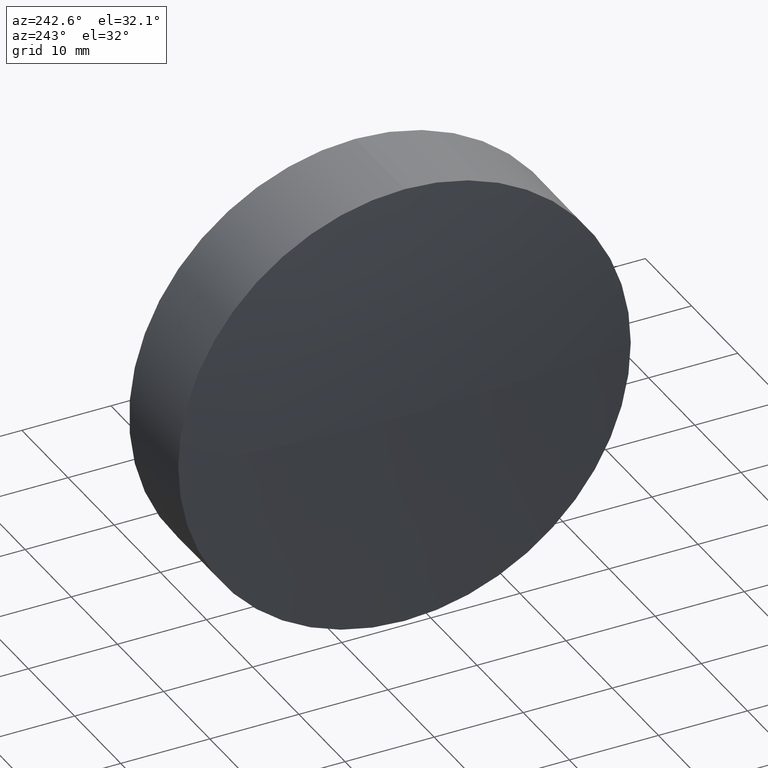
[diagram: clean part render]
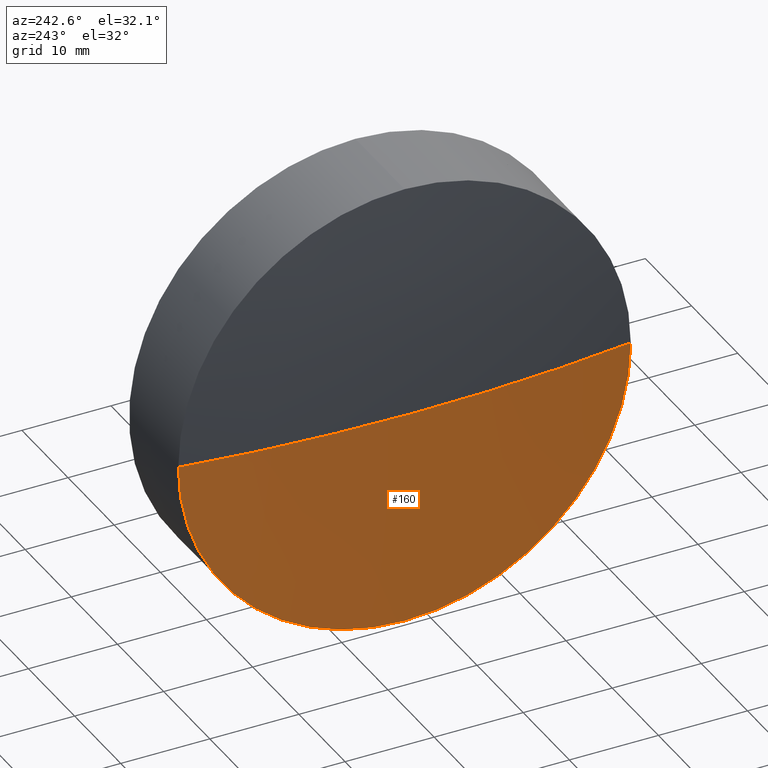
[diagram: same view with one face highlighted and labeled with its STEP entity id]
A machine part, auxiliary view. The second image highlights one B-rep face of the part: STEP entity #160.
In plain terms, the highlighted spherical surface has radius 184.25 mm.
Its self-contained STEP definition (entity closure, byte-faithful):
#2 = EDGE_CURVE ( 'NONE', #385, #277, #74, .T. ) ;
#17 = DIRECTION ( 'NONE',  ( 0.000000000000000000, 0.000000000000000000, 1.000000000000000000 ) ) ;
#39 = EDGE_CURVE ( 'NONE', #385, #207, #42, .T. ) ;
#42 = CIRCLE ( 'NONE', #65, 25.39999999999999858 ) ;
#52 = ORIENTED_EDGE ( 'NONE', *, *, #130, .T. ) ;
#65 = AXIS2_PLACEMENT_3D ( 'NONE', #280, #102, #279 ) ;
#70 = DIRECTION ( 'NONE',  ( 0.000000000000000000, 1.000000000000000000, 1.224646799147352961E-16 ) ) ;
#74 = CIRCLE ( 'NONE', #321, 184.2500000000000000 ) ;
#89 = CARTESIAN_POINT ( 'NONE',  ( 151.6477093542552836, 13.39555463349441311, 0.000000000000000000 ) ) ;
#92 = EDGE_LOOP ( 'NONE', ( #187, #343, #52, #129 ) ) ;
#102 = DIRECTION ( 'NONE',  ( -1.000000000000000000, -0.000000000000000000, -0.000000000000000000 ) ) ;
#117 = AXIS2_PLACEMENT_3D ( 'NONE', #285, #228, #70 ) ;
#129 = ORIENTED_EDGE ( 'NONE', *, *, #2, .F. ) ;
#130 = EDGE_CURVE ( 'NONE', #327, #277, #169, .T. ) ;
#136 = AXIS2_PLACEMENT_3D ( 'NONE', #184, #153, #17 ) ;
#137 = FACE_OUTER_BOUND ( 'NONE', #92, .T. ) ;
#150 = CARTESIAN_POINT ( 'NONE',  ( -30.84311918241391837, -12.00444536650557303, -3.110602869834275682E-15 ) ) ;
#153 = DIRECTION ( 'NONE',  ( -1.000000000000000000, -0.000000000000000000, -0.000000000000000000 ) ) ;
#160 = ADVANCED_FACE ( 'NONE', ( #137 ), #198, .T. ) ;
#169 = CIRCLE ( 'NONE', #117, 184.2500000000000284 ) ;
#184 = CARTESIAN_POINT ( 'NONE',  ( -30.84311918241391837, 13.39555463349441311, 0.000000000000000000 ) ) ;
#187 = ORIENTED_EDGE ( 'NONE', *, *, #39, .T. ) ;
#198 = SPHERICAL_SURFACE ( 'NONE', #318, 184.2500000000000000 ) ;
#207 = VERTEX_POINT ( 'NONE', #243 ) ;
#212 = DIRECTION ( 'NONE',  ( -0.000000000000000000, 0.000000000000000000, 1.000000000000000000 ) ) ;
#228 = DIRECTION ( 'NONE',  ( 0.000000000000000000, 1.224646799147353207E-16, -1.000000000000000000 ) ) ;
#243 = CARTESIAN_POINT ( 'NONE',  ( -30.84311918241391837, 13.39555463349441666, -25.39999999999999858 ) ) ;
#253 = DIRECTION ( 'NONE',  ( -0.000000000000000000, 0.000000000000000000, -1.000000000000000000 ) ) ;
#268 = CARTESIAN_POINT ( 'NONE',  ( -32.60229064574471636, 13.39555463349442554, 0.000000000000000000 ) ) ;
#277 = VERTEX_POINT ( 'NONE', #268 ) ;
#279 = DIRECTION ( 'NONE',  ( 0.000000000000000000, 0.000000000000000000, 1.000000000000000000 ) ) ;
#280 = CARTESIAN_POINT ( 'NONE',  ( -30.84311918241391837, 13.39555463349441311, 0.000000000000000000 ) ) ;
#285 = CARTESIAN_POINT ( 'NONE',  ( 151.6477093542552836, 13.39555463349441311, 0.000000000000000000 ) ) ;
#288 = CARTESIAN_POINT ( 'NONE',  ( 151.6477093542552836, 13.39555463349441311, 0.000000000000000000 ) ) ;
#293 = EDGE_CURVE ( 'NONE', #207, #327, #381, .T. ) ;
#318 = AXIS2_PLACEMENT_3D ( 'NONE', #288, #253, #382 ) ;
#321 = AXIS2_PLACEMENT_3D ( 'NONE', #89, #212, #339 ) ;
#327 = VERTEX_POINT ( 'NONE', #150 ) ;
#339 = DIRECTION ( 'NONE',  ( 1.000000000000000000, 0.000000000000000000, 0.000000000000000000 ) ) ;
#343 = ORIENTED_EDGE ( 'NONE', *, *, #293, .T. ) ;
#381 = CIRCLE ( 'NONE', #136, 25.39999999999999858 ) ;
#382 = DIRECTION ( 'NONE',  ( 0.000000000000000000, 1.000000000000000000, 0.000000000000000000 ) ) ;
#385 = VERTEX_POINT ( 'NONE', #401 ) ;
#401 = CARTESIAN_POINT ( 'NONE',  ( -30.84311918241391837, 38.79555463349440458, 0.000000000000000000 ) ) ;